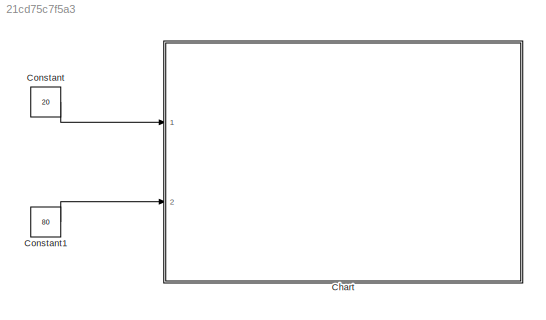
MODEL slx_21cd75c7f5a3
KIND model
CONFIG AbsTol = auto
CONFIG EnableMultiTasking = off
CONFIG FixedStep = 1
CONFIG MaxStep = auto
CONFIG MinStep = auto
CONFIG RelTol = 1e-3
CONFIG SampleTimeConstraint = Unconstrained
CONFIG SolverName = VariableStepAuto
CONFIG StartTime = 0.0
CONFIG StopTime = inf
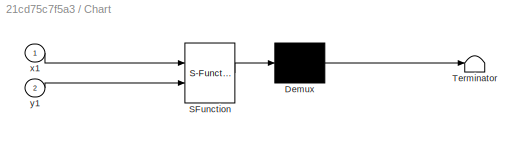
BLOCK [SubSystem] Chart
  ErrorFcn = Stateflow.Translate.translate
  PermitHierarchicalResolution = ExplicitOnly
  Ports = [2]
  RequestExecContextInheritance = off
  SFBlockType = Chart
  TreatAsAtomicUnit = on
BLOCK [Demux] Chart/ Demux 
  Outputs = 1
  Ports = [1, 1]
BLOCK [S-Function] Chart/ SFunction 
  EnableBusSupport = on
  FunctionName = sf_sfun
  PortCounts = [2 1]
  Ports = [2, 1]
  SFcnIsStateOwnerBlock = off
  SFunctionDeploymentMode = off
  Tag = Stateflow S-Function 3
BLOCK [Terminator] Chart/ Terminator 
BLOCK [Inport] Chart/x1
BLOCK [Inport] Chart/y1
  Port = 2
BLOCK [Constant] Constant
  Value = 20
BLOCK [Constant] Constant1
  Value = 80
LINE Constant1:1 -> Chart:2
LINE Constant:1 -> Chart:1
CHART Chart states=6 transitions=19
  STATE_LABEL 'RIGHT\ndu:\n  x0_dot =6;\n'
  STATE_LABEL 'UP\ndu:\n  y0_dot=8;'
  STATE_LABEL 'STOP\ndu:\n  x0_dot=0;\n  y0_dot=0;\n'
  STATE_LABEL 'DIRECT\ndu:\n  x0_dot=cos(atan(a))*(5)*(x1-x0)/abs(x1-x0);\n  y0_dot=sin(atan(a))*(5)*(x1-x0)/abs(x1-x0);'
  STATE_LABEL 'DOWN\ndu:\n  y0_dot= -8;'
  STATE_LABEL 'LEFT\ndu:\n  x0_dot=-6;'
CHART  states=0 transitions=0
